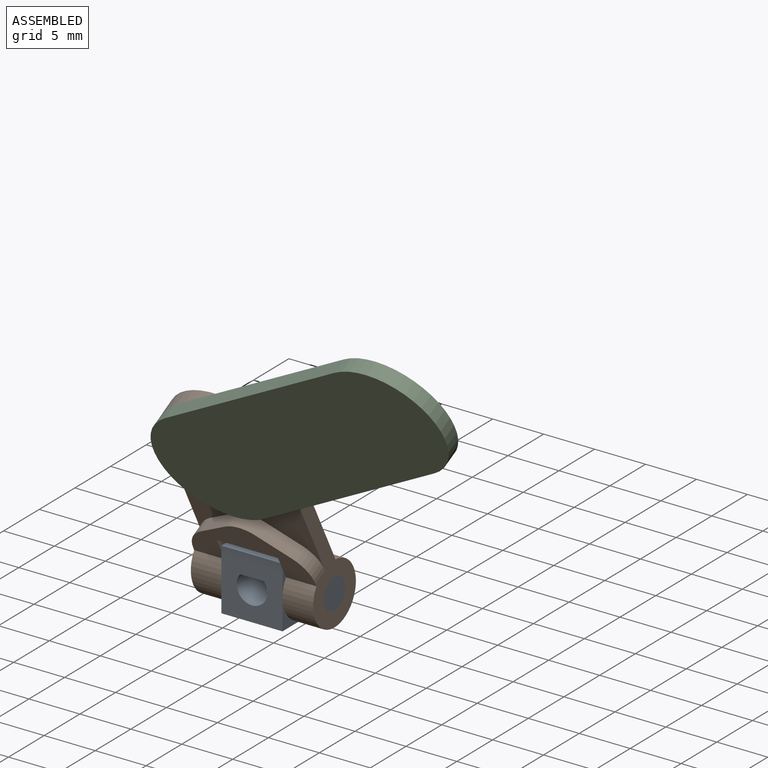
[diagram: assembled view]
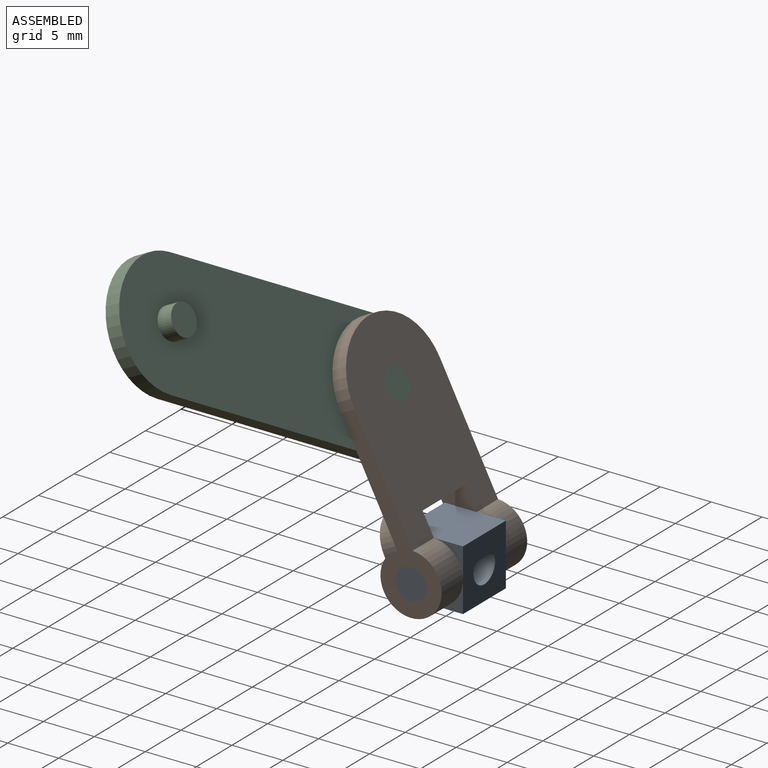
[diagram: assembled view, second angle]
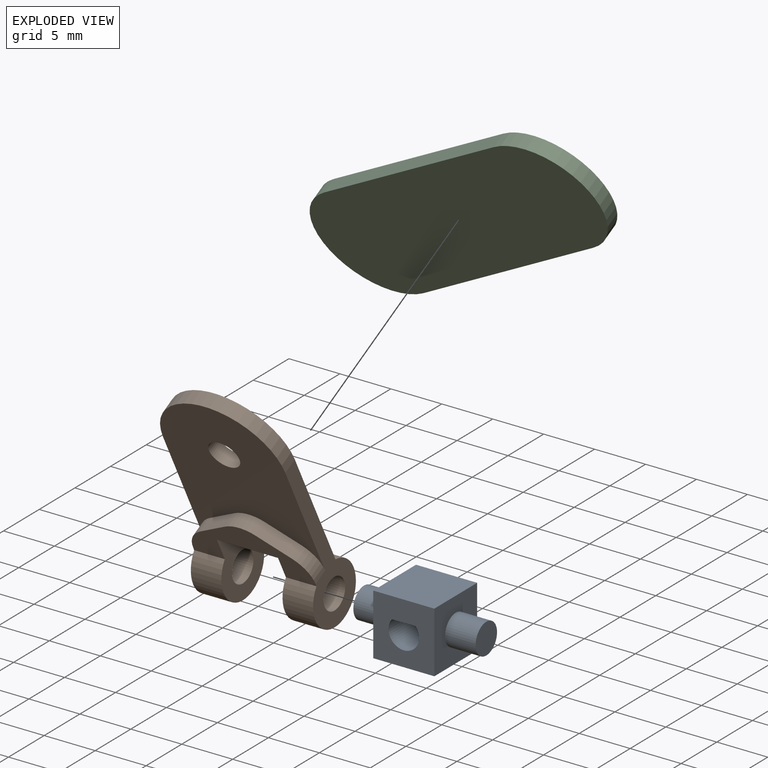
[diagram: exploded view]
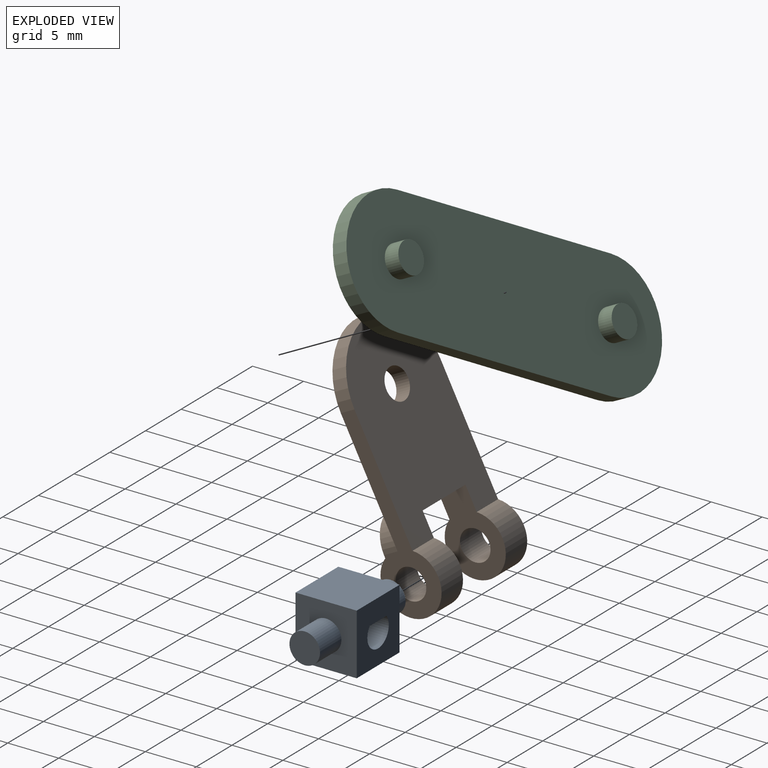
[diagram: exploded view, second angle]
ASSEMBLY  parts=3 mates=4
PART A: 12 faces, bbox 12x6x6 mm
  f0: plane 6x6mm, normal (0,-1,0), area 29.8mm2, adj f2,f3,f4,f5,f10,f11
  f1: plane 6x6mm, normal (0,1,0), area 29.8mm2, adj f2,f3,f4,f5,f10,f11
  f2: plane 6x6mm, normal (1,0,0), area 28.9mm2, adj f0,f1,f3,f5,f6
  f3: plane 6x6mm, normal (0,0,1), area 36mm2, adj f0,f1,f2,f4
  f4: plane 6x6mm, normal (-1,0,0), area 28.9mm2, adj f0,f1,f3,f5,f8
  f5: plane 6x6mm, normal (0,0,-1), area 36mm2, adj f0,f1,f2,f4
  f6: cylinder r=1.5mm len=3mm, axis (-1,0,0), area 28.3mm2, adj f2,f7
  f7: plane 3x3mm, normal (1,0,0), area 7.1mm2, adj f6
  f8: cylinder r=1.5mm len=3mm, axis (1,0,0), area 28.3mm2, adj f4,f9
  f9: plane 3x3mm, normal (-1,0,0), area 7.1mm2, adj f8
  f10: plane 6x2.32mm, normal (0,0,-1), area 13.9mm2, adj f0,f1,f11
  f11: cylinder r=1.5mm len=6mm, axis (0,1,0), area 40.6mm2, adj f0,f1,f10
PART B: 19 faces, bbox 12x6x24 mm
  f0: cylinder r=1.5mm len=3mm, axis (0,-1,0), area 14.1mm2, adj f5,f15
  f1: cylinder r=3mm len=6mm, axis (-1,0,0), area 47.1mm2, adj f3,f5,f8,f11
  f2: cylinder r=1.5mm len=3mm, axis (-1,0,0), area 28.3mm2, adj f8,f11
  f3: plane 12x5.01mm, normal (0,-1,0), area 29mm2, adj f1,f4,f7,f8,f9,f10,f11,f13
  f4: cylinder r=3mm len=6mm, axis (-1,0,0), area 47.1mm2, adj f3,f5,f7,f10
  f5: plane 18.4x12mm, normal (0,1,0), area 183.9mm2, adj f0,f1,f4,f7,f8,f9,f10,f11
  f6: cylinder r=1.5mm len=3mm, axis (-1,0,0), area 28.3mm2, adj f7,f10
  f7: plane 18x6mm, normal (1,0,0), area 39.4mm2, adj f3,f4,f5,f6,f12,f15,f17
  f8: plane 18x6mm, normal (-1,0,0), area 39.4mm2, adj f1,f2,f3,f5,f12,f15,f18
  f9: plane 6x3mm, normal (0,0,-1), area 18mm2, adj f3,f5,f10,f11
  f10: plane 8x6mm, normal (-1,0,0), area 27.6mm2, adj f3,f4,f5,f6,f9
  f11: plane 8x6mm, normal (1,0,0), area 27.6mm2, adj f1,f2,f3,f5,f9
  f12: cylinder r=6mm len=12mm, axis (0,1,0), area 28.3mm2, adj f5,f7,f8,f15
  f13: plane 3x1.73mm, normal (0.5,0,0.87), area 5.2mm2, adj f3,f15,f16,f17
  f14: plane 3x1.73mm, normal (-0.5,0,0.87), area 5.2mm2, adj f3,f15,f16,f18
  f15: plane 18.12x12mm, normal (0,-1,0), area 154.9mm2, adj f0,f7,f8,f12,f13,f14,f16,f17
  f16: cylinder r=3mm len=3mm, axis (0,-1,0), area 4.7mm2, adj f3,f13,f14,f15
  f17: cylinder r=3mm len=2.6mm, axis (0,1,0), area 4.7mm2, adj f3,f7,f13,f15
  f18: cylinder r=3mm len=2.6mm, axis (0,1,0), area 4.7mm2, adj f3,f8,f14,f15
PART C: 10 faces, bbox 12x3x37 mm
  f0: cylinder r=6mm len=12mm, axis (0,1,0), area 28.3mm2, adj f1,f3,f4,f5
  f1: plane 25x1.5mm, normal (1,0,0), area 37.5mm2, adj f0,f2,f4,f5
  f2: cylinder r=6mm len=12mm, axis (0,1,0), area 28.3mm2, adj f1,f3,f4,f5
  f3: plane 25x1.5mm, normal (-1,0,0), area 37.5mm2, adj f0,f2,f4,f5
  f4: plane 37x12mm, normal (0,-1,0), area 399mm2, adj f0,f1,f2,f3,f6,f8
  f5: plane 37x12mm, normal (0,1,0), area 413.1mm2, adj f0,f1,f2,f3
  f6: cylinder r=1.5mm len=3mm, axis (0,1,0), area 14.1mm2, adj f4,f7
  f7: plane 3x3mm, normal (0,-1,0), area 7.1mm2, adj f6
  f8: cylinder r=1.5mm len=3mm, axis (0,1,0), area 14.1mm2, adj f4,f9
  f9: plane 3x3mm, normal (0,-1,0), area 7.1mm2, adj f8
PLACE A t=(-2.72,-1.13,0.55)mm fixed
PLACE B rot(axis=(1,0,0),27.3deg) t=(-2.72,-1.13,0.55)mm
PLACE C rot(axis=(-0.87,-0.12,0.48),156.1deg) t=(18.3,-15.57,25.21)mm
MATE planar C.f4 <-> B.f15  axis (0,0.89,0.46) through (7.79,-11.13,19.88)mm
MATE cylindrical B.f2 <-> A.f6  axis (-1,0,0) through (-8.72,-1.13,0.55)mm
MATE cylindrical C.f2 <-> B.f0  axis (0,-0.89,-0.46) through (-2.72,-7.36,14.22)mm
MATE planar A.f6 <-> B.f11  axis (-1,0,0) through (-5.72,-1.13,0.55)mm
